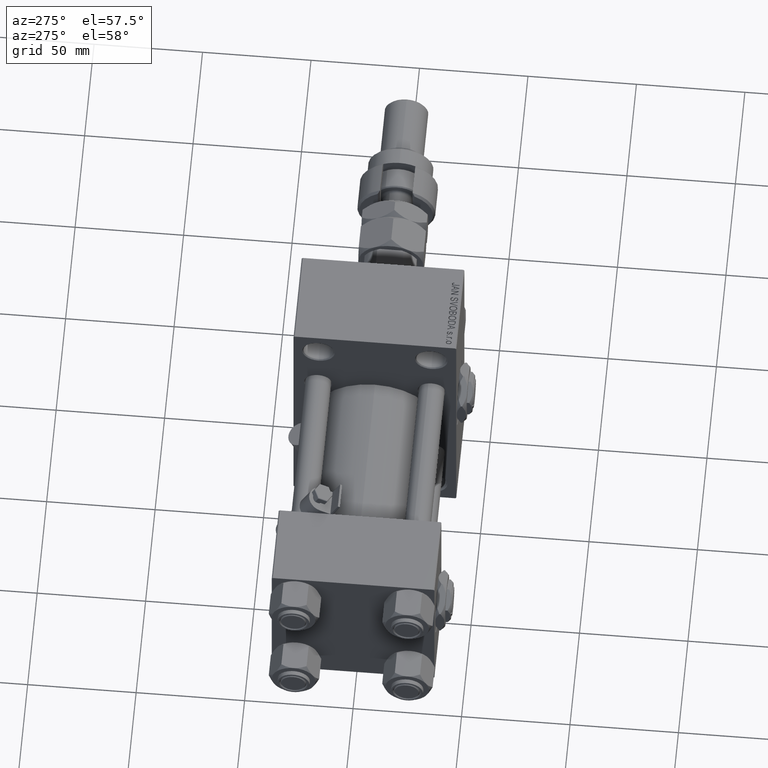
[diagram: clean part render]
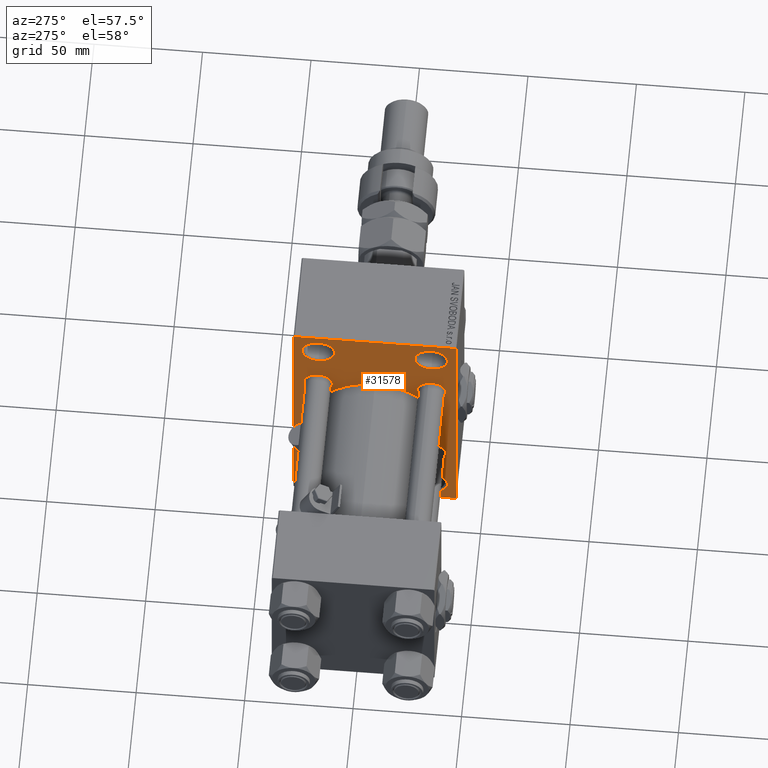
[diagram: same view with one face highlighted and labeled with its STEP entity id]
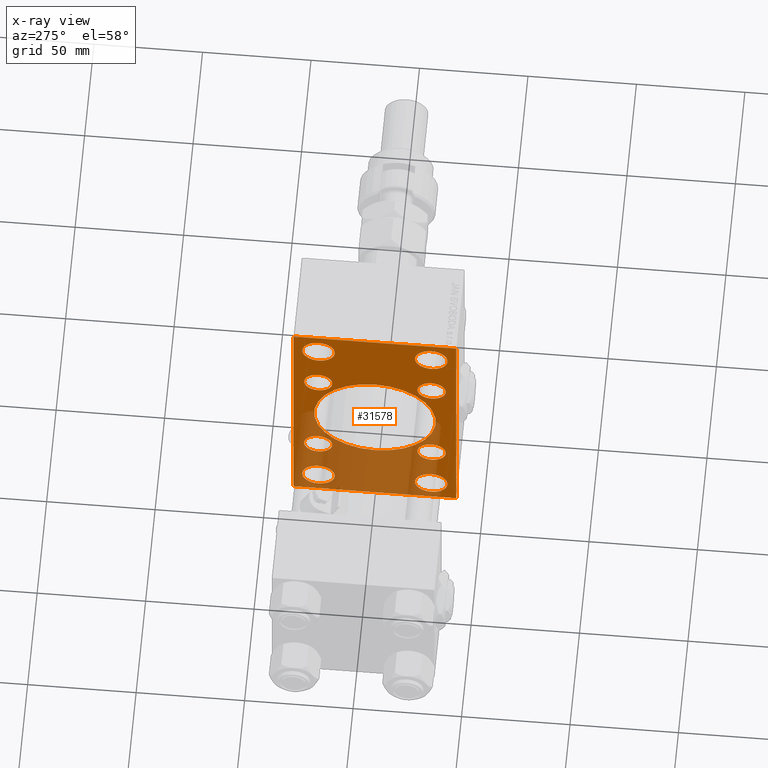
[diagram: x-ray of the same camera — body ghosted, the highlighted face saturated]
A machine part, auxiliary view. The second image highlights one B-rep face of the part: STEP entity #31578.
The next image is the same camera in x-ray: the body ghosted, the highlighted face saturated — about 40% of this face is hidden behind the body in this view.
In plain terms, the highlighted planar face has unit normal (-1, 0, 0).
Its self-contained STEP definition (entity closure, byte-faithful):
#60 = DIRECTION ( 'NONE',  ( 0.000000000000000000, 0.000000000000000000, 1.000000000000000000 ) ) ;
#288 = CARTESIAN_POINT ( 'NONE',  ( 114.9999999999999858, -25.99999999999999645, 45.00000000000002132 ) ) ;
#322 = DIRECTION ( 'NONE',  ( 0.000000000000000000, 0.000000000000000000, 1.000000000000000000 ) ) ;
#610 = ORIENTED_EDGE ( 'NONE', *, *, #37552, .T. ) ;
#745 = CARTESIAN_POINT ( 'NONE',  ( 114.9999999999999858, 26.00000000000000000, -59.99999999999997158 ) ) ;
#1836 = DIRECTION ( 'NONE',  ( -1.000000000000000000, 0.000000000000000000, -0.000000000000000000 ) ) ;
#1997 = ORIENTED_EDGE ( 'NONE', *, *, #21598, .F. ) ;
#2116 = CARTESIAN_POINT ( 'NONE',  ( 114.9999999999999858, -25.99999999999999645, 52.50000000000000000 ) ) ;
#2175 = LINE ( 'NONE', #31230, #34675 ) ;
#2268 = EDGE_CURVE ( 'NONE', #14421, #41758, #11145, .T. ) ;
#2373 = ORIENTED_EDGE ( 'NONE', *, *, #2268, .T. ) ;
#2384 = EDGE_CURVE ( 'NONE', #11996, #7151, #2536, .T. ) ;
#2536 = CIRCLE ( 'NONE', #42084, 6.500000000000008882 ) ;
#2812 = ORIENTED_EDGE ( 'NONE', *, *, #30804, .T. ) ;
#3006 = ORIENTED_EDGE ( 'NONE', *, *, #33141, .T. ) ;
#3104 = EDGE_CURVE ( 'NONE', #51750, #41331, #44697, .T. ) ;
#3382 = EDGE_LOOP ( 'NONE', ( #43505, #33776 ) ) ;
#4060 = DIRECTION ( 'NONE',  ( 1.000000000000000000, -0.000000000000000000, 0.000000000000000000 ) ) ;
#4410 = DIRECTION ( 'NONE',  ( 0.000000000000000000, -1.000000000000000000, -1.850371707708594563E-16 ) ) ;
#4458 = CIRCLE ( 'NONE', #15633, 6.500000000000008882 ) ;
#4763 = DIRECTION ( 'NONE',  ( 1.000000000000000000, -0.000000000000000000, 0.000000000000000000 ) ) ;
#4822 = CIRCLE ( 'NONE', #33221, 28.00000000000000000 ) ;
#5019 = DIRECTION ( 'NONE',  ( 0.000000000000000000, 0.000000000000000000, 1.000000000000000000 ) ) ;
#5228 = CARTESIAN_POINT ( 'NONE',  ( 114.9999999999999858, 37.00000000000000000, 63.99999999999998579 ) ) ;
#5376 = EDGE_CURVE ( 'NONE', #34450, #27543, #24894, .T. ) ;
#5380 = DIRECTION ( 'NONE',  ( 0.000000000000000000, 0.000000000000000000, 1.000000000000000000 ) ) ;
#5451 = DIRECTION ( 'NONE',  ( 0.000000000000000000, 0.000000000000000000, 1.000000000000000000 ) ) ;
#5622 = CARTESIAN_POINT ( 'NONE',  ( 114.9999999999999858, 26.00000000000000000, 52.49999999999999289 ) ) ;
#5639 = DIRECTION ( 'NONE',  ( 0.000000000000000000, 0.000000000000000000, 1.000000000000000000 ) ) ;
#6108 = CARTESIAN_POINT ( 'NONE',  ( 114.9999999999999858, -37.49999999999999289, -63.49999999999997158 ) ) ;
#6119 = CARTESIAN_POINT ( 'NONE',  ( 114.9999999999999858, 0.000000000000000000, 0.000000000000000000 ) ) ;
#6409 = CARTESIAN_POINT ( 'NONE',  ( 114.9999999999999858, -26.14999999999999147, -19.65000000000000213 ) ) ;
#6569 = VERTEX_POINT ( 'NONE', #47971 ) ;
#6861 = AXIS2_PLACEMENT_3D ( 'NONE', #32967, #45317, #45052 ) ;
#6867 = AXIS2_PLACEMENT_3D ( 'NONE', #12847, #4763, #5019 ) ;
#7151 = VERTEX_POINT ( 'NONE', #44869 ) ;
#7157 = ORIENTED_EDGE ( 'NONE', *, *, #31911, .T. ) ;
#7205 = DIRECTION ( 'NONE',  ( 1.000000000000000000, -0.000000000000000000, 0.000000000000000000 ) ) ;
#7385 = EDGE_LOOP ( 'NONE', ( #610, #7157 ) ) ;
#7424 = CARTESIAN_POINT ( 'NONE',  ( 114.9999999999999858, 26.00000000000000000, 45.00000000000001421 ) ) ;
#7483 = EDGE_CURVE ( 'NONE', #28259, #12597, #43881, .T. ) ;
#7524 = DIRECTION ( 'NONE',  ( -0.000000000000000000, 0.7071067811865525687, 0.7071067811865425767 ) ) ;
#7942 = CIRCLE ( 'NONE', #15674, 7.499999999999978684 ) ;
#8565 = CARTESIAN_POINT ( 'NONE',  ( 114.9999999999999858, -25.99999999999999645, -45.00000000000001421 ) ) ;
#8667 = VERTEX_POINT ( 'NONE', #7424 ) ;
#9068 = EDGE_CURVE ( 'NONE', #46050, #16071, #48234, .T. ) ;
#9381 = VERTEX_POINT ( 'NONE', #38407 ) ;
#9782 = DIRECTION ( 'NONE',  ( 0.000000000000000000, -1.000000000000000000, -1.850371707708594563E-16 ) ) ;
#10042 = DIRECTION ( 'NONE',  ( -0.000000000000000000, -0.7071067811865376918, -0.7071067811865573427 ) ) ;
#10097 = DIRECTION ( 'NONE',  ( 0.000000000000000000, 0.000000000000000000, 1.000000000000000000 ) ) ;
#10163 = FACE_BOUND ( 'NONE', #36659, .T. ) ;
#10381 = ORIENTED_EDGE ( 'NONE', *, *, #13264, .T. ) ;
#10399 = ORIENTED_EDGE ( 'NONE', *, *, #33667, .T. ) ;
#10515 = AXIS2_PLACEMENT_3D ( 'NONE', #6119, #1836, #27374 ) ;
#10701 = FACE_BOUND ( 'NONE', #46597, .T. ) ;
#10736 = EDGE_LOOP ( 'NONE', ( #10381, #2812, #1997, #34935, #41290, #51420, #24467, #11512 ) ) ;
#10764 = EDGE_CURVE ( 'NONE', #41331, #51750, #7942, .T. ) ;
#11145 = CIRCLE ( 'NONE', #30922, 28.00000000000000000 ) ;
#11512 = ORIENTED_EDGE ( 'NONE', *, *, #13211, .T. ) ;
#11885 = ORIENTED_EDGE ( 'NONE', *, *, #27658, .T. ) ;
#11996 = VERTEX_POINT ( 'NONE', #25783 ) ;
#12067 = CARTESIAN_POINT ( 'NONE',  ( 114.9999999999999858, 26.14999999999999858, 32.65000000000001990 ) ) ;
#12174 = DIRECTION ( 'NONE',  ( 1.000000000000000000, -0.000000000000000000, 0.000000000000000000 ) ) ;
#12241 = CARTESIAN_POINT ( 'NONE',  ( 114.9999999999999858, 37.50000000000000000, 63.49999999999998579 ) ) ;
#12453 = DIRECTION ( 'NONE',  ( 0.000000000000000000, 0.000000000000000000, 1.000000000000000000 ) ) ;
#12597 = VERTEX_POINT ( 'NONE', #15934 ) ;
#12847 = CARTESIAN_POINT ( 'NONE',  ( 114.9999999999999858, -25.99999999999999645, -52.49999999999999289 ) ) ;
#13120 = ORIENTED_EDGE ( 'NONE', *, *, #9068, .T. ) ;
#13211 = EDGE_CURVE ( 'NONE', #9381, #45383, #50146, .T. ) ;
#13229 = EDGE_LOOP ( 'NONE', ( #10399, #13120 ) ) ;
#13264 = EDGE_CURVE ( 'NONE', #45383, #48293, #17337, .T. ) ;
#13407 = VECTOR ( 'NONE', #40706, 1000.000000000000000 ) ;
#13473 = CARTESIAN_POINT ( 'NONE',  ( 114.9999999999999858, -25.99999999999999645, 52.50000000000000000 ) ) ;
#13898 = ORIENTED_EDGE ( 'NONE', *, *, #5376, .T. ) ;
#14421 = VERTEX_POINT ( 'NONE', #21323 ) ;
#14876 = CARTESIAN_POINT ( 'NONE',  ( 114.9999999999999858, -2.602085213965210642E-15, 0.000000000000000000 ) ) ;
#14953 = CARTESIAN_POINT ( 'NONE',  ( 114.9999999999999858, 26.00000000000000000, 52.49999999999999289 ) ) ;
#15031 = VERTEX_POINT ( 'NONE', #23875 ) ;
#15627 = AXIS2_PLACEMENT_3D ( 'NONE', #18708, #46945, #10097 ) ;
#15633 = AXIS2_PLACEMENT_3D ( 'NONE', #30099, #20701, #29306 ) ;
#15674 = AXIS2_PLACEMENT_3D ( 'NONE', #31785, #4060, #28021 ) ;
#15934 = CARTESIAN_POINT ( 'NONE',  ( 114.9999999999999858, -25.99999999999999645, 59.99999999999997868 ) ) ;
#16071 = VERTEX_POINT ( 'NONE', #12067 ) ;
#16423 = CARTESIAN_POINT ( 'NONE',  ( 114.9999999999999858, -50.49999999999972289, 50.50000000000042633 ) ) ;
#16615 = EDGE_CURVE ( 'NONE', #21825, #33289, #2175, .T. ) ;
#16802 = EDGE_CURVE ( 'NONE', #15031, #25445, #25110, .T. ) ;
#17048 = DIRECTION ( 'NONE',  ( 1.000000000000000000, -0.000000000000000000, 0.000000000000000000 ) ) ;
#17075 = EDGE_LOOP ( 'NONE', ( #3006, #49590 ) ) ;
#17337 = LINE ( 'NONE', #30242, #31269 ) ;
#18281 = CIRCLE ( 'NONE', #27609, 7.499999999999978684 ) ;
#18451 = VERTEX_POINT ( 'NONE', #745 ) ;
#18556 = CARTESIAN_POINT ( 'NONE',  ( 114.9999999999999858, 26.00000000000000000, 59.99999999999997158 ) ) ;
#18708 = CARTESIAN_POINT ( 'NONE',  ( 114.9999999999999858, 26.14999999999999858, -26.15000000000000213 ) ) ;
#19034 = CARTESIAN_POINT ( 'NONE',  ( 114.9999999999999858, -50.50000000000050449, -50.49999999999910472 ) ) ;
#19653 = CARTESIAN_POINT ( 'NONE',  ( 114.9999999999999858, -2.602085213965210642E-15, 0.000000000000000000 ) ) ;
#19899 = AXIS2_PLACEMENT_3D ( 'NONE', #29690, #17048, #5451 ) ;
#19900 = DIRECTION ( 'NONE',  ( 1.000000000000000000, -0.000000000000000000, 0.000000000000000000 ) ) ;
#19975 = AXIS2_PLACEMENT_3D ( 'NONE', #37707, #12174, #322 ) ;
#20418 = CARTESIAN_POINT ( 'NONE',  ( 114.9999999999999858, -36.99999999999996447, -64.00000000000001421 ) ) ;
#20701 = DIRECTION ( 'NONE',  ( 1.000000000000000000, -0.000000000000000000, 0.000000000000000000 ) ) ;
#21323 = CARTESIAN_POINT ( 'NONE',  ( 114.9999999999999858, -2.602085213965210642E-15, 28.00000000000000000 ) ) ;
#21369 = CARTESIAN_POINT ( 'NONE',  ( 114.9999999999999858, 50.50000000000053291, -50.49999999999912603 ) ) ;
#21598 = EDGE_CURVE ( 'NONE', #15031, #41524, #24352, .T. ) ;
#21825 = VERTEX_POINT ( 'NONE', #5228 ) ;
#22461 = CARTESIAN_POINT ( 'NONE',  ( 114.9999999999999858, -36.99999999999998579, 63.99999999999997158 ) ) ;
#22831 = DIRECTION ( 'NONE',  ( 1.000000000000000000, -0.000000000000000000, 0.000000000000000000 ) ) ;
#22932 = CARTESIAN_POINT ( 'NONE',  ( 114.9999999999999858, 26.14999999999999858, 19.64999999999999147 ) ) ;
#22944 = CIRCLE ( 'NONE', #40107, 6.500000000000008882 ) ;
#23616 = DIRECTION ( 'NONE',  ( 0.000000000000000000, 0.000000000000000000, 1.000000000000000000 ) ) ;
#23816 = DIRECTION ( 'NONE',  ( 0.000000000000000000, 0.000000000000000000, -1.000000000000000000 ) ) ;
#23875 = CARTESIAN_POINT ( 'NONE',  ( 114.9999999999999858, -37.49999999999999289, 63.49999999999997158 ) ) ;
#24328 = CARTESIAN_POINT ( 'NONE',  ( 114.9999999999999858, 37.50000000000000000, 63.99999999999998579 ) ) ;
#24352 = LINE ( 'NONE', #33237, #52010 ) ;
#24467 = ORIENTED_EDGE ( 'NONE', *, *, #44159, .T. ) ;
#24802 = VERTEX_POINT ( 'NONE', #48656 ) ;
#24894 = CIRCLE ( 'NONE', #6861, 6.500000000000008882 ) ;
#25110 = LINE ( 'NONE', #16423, #29551 ) ;
#25445 = VERTEX_POINT ( 'NONE', #22461 ) ;
#25602 = DIRECTION ( 'NONE',  ( 1.000000000000000000, -0.000000000000000000, 0.000000000000000000 ) ) ;
#25783 = CARTESIAN_POINT ( 'NONE',  ( 114.9999999999999858, 26.14999999999999858, -32.65000000000001279 ) ) ;
#26113 = AXIS2_PLACEMENT_3D ( 'NONE', #41744, #25602, #60 ) ;
#26316 = FACE_BOUND ( 'NONE', #36718, .T. ) ;
#26500 = EDGE_CURVE ( 'NONE', #21825, #25445, #40461, .T. ) ;
#26585 = ORIENTED_EDGE ( 'NONE', *, *, #47252, .T. ) ;
#26990 = CIRCLE ( 'NONE', #38163, 7.499999999999978684 ) ;
#27065 = DIRECTION ( 'NONE',  ( 1.000000000000000000, -0.000000000000000000, 0.000000000000000000 ) ) ;
#27117 = FACE_BOUND ( 'NONE', #7385, .T. ) ;
#27374 = DIRECTION ( 'NONE',  ( -0.000000000000000000, 0.000000000000000000, 1.000000000000000000 ) ) ;
#27543 = VERTEX_POINT ( 'NONE', #6409 ) ;
#27609 = AXIS2_PLACEMENT_3D ( 'NONE', #47212, #38622, #47479 ) ;
#27658 = EDGE_CURVE ( 'NONE', #8667, #39951, #35334, .T. ) ;
#27726 = DIRECTION ( 'NONE',  ( 0.000000000000000000, 0.000000000000000000, -1.000000000000000000 ) ) ;
#28021 = DIRECTION ( 'NONE',  ( 0.000000000000000000, 0.000000000000000000, 1.000000000000000000 ) ) ;
#28259 = VERTEX_POINT ( 'NONE', #288 ) ;
#28403 = ORIENTED_EDGE ( 'NONE', *, *, #42445, .T. ) ;
#28598 = DIRECTION ( 'NONE',  ( 1.000000000000000000, -0.000000000000000000, 0.000000000000000000 ) ) ;
#28804 = DIRECTION ( 'NONE',  ( 1.000000000000000000, 0.000000000000000000, 0.000000000000000000 ) ) ;
#29306 = DIRECTION ( 'NONE',  ( 0.000000000000000000, 0.000000000000000000, 1.000000000000000000 ) ) ;
#29551 = VECTOR ( 'NONE', #7524, 999.9999999999998863 ) ;
#29690 = CARTESIAN_POINT ( 'NONE',  ( 114.9999999999999858, 26.14999999999999858, 26.15000000000000213 ) ) ;
#30099 = CARTESIAN_POINT ( 'NONE',  ( 114.9999999999999858, -26.14999999999999147, 26.15000000000000924 ) ) ;
#30242 = CARTESIAN_POINT ( 'NONE',  ( 114.9999999999999858, 37.49999999999999289, -64.00000000000000000 ) ) ;
#30270 = CIRCLE ( 'NONE', #19975, 6.500000000000008882 ) ;
#30575 = EDGE_CURVE ( 'NONE', #42187, #6569, #4458, .T. ) ;
#30804 = EDGE_CURVE ( 'NONE', #48293, #41524, #51301, .T. ) ;
#30922 = AXIS2_PLACEMENT_3D ( 'NONE', #14876, #31291, #43631 ) ;
#30983 = CARTESIAN_POINT ( 'NONE',  ( 114.9999999999999858, -25.99999999999999645, -59.99999999999997158 ) ) ;
#31059 = CIRCLE ( 'NONE', #15627, 6.500000000000008882 ) ;
#31148 = FACE_OUTER_BOUND ( 'NONE', #10736, .T. ) ;
#31230 = CARTESIAN_POINT ( 'NONE',  ( 114.9999999999999858, 50.49999999999998579, 50.49999999999998579 ) ) ;
#31269 = VECTOR ( 'NONE', #9782, 1000.000000000000000 ) ;
#31288 = CIRCLE ( 'NONE', #26113, 7.499999999999978684 ) ;
#31291 = DIRECTION ( 'NONE',  ( 1.000000000000000000, 0.000000000000000000, 0.000000000000000000 ) ) ;
#31578 = ADVANCED_FACE ( 'NONE', ( #50788, #45431, #27117, #26316, #10163, #39212, #42960, #47013, #10701, #31148 ), #38688, .T. ) ;
#31747 = DIRECTION ( 'NONE',  ( 0.000000000000000000, 0.7071067811865474617, -0.7071067811865474617 ) ) ;
#31785 = CARTESIAN_POINT ( 'NONE',  ( 114.9999999999999858, -25.99999999999999645, -52.49999999999999289 ) ) ;
#31911 = EDGE_CURVE ( 'NONE', #18451, #24802, #18281, .T. ) ;
#32564 = ORIENTED_EDGE ( 'NONE', *, *, #37900, .T. ) ;
#32967 = CARTESIAN_POINT ( 'NONE',  ( 114.9999999999999858, -26.14999999999999147, -26.15000000000000924 ) ) ;
#32968 = VECTOR ( 'NONE', #10042, 1000.000000000000114 ) ;
#33141 = EDGE_CURVE ( 'NONE', #7151, #11996, #31059, .T. ) ;
#33221 = AXIS2_PLACEMENT_3D ( 'NONE', #19653, #28804, #27726 ) ;
#33237 = CARTESIAN_POINT ( 'NONE',  ( 114.9999999999999858, -37.49999999999999289, 63.99999999999997158 ) ) ;
#33289 = VERTEX_POINT ( 'NONE', #12241 ) ;
#33605 = AXIS2_PLACEMENT_3D ( 'NONE', #5622, #22831, #43516 ) ;
#33667 = EDGE_CURVE ( 'NONE', #16071, #46050, #30270, .T. ) ;
#33776 = ORIENTED_EDGE ( 'NONE', *, *, #7483, .T. ) ;
#34450 = VERTEX_POINT ( 'NONE', #39613 ) ;
#34675 = VECTOR ( 'NONE', #31747, 1000.000000000000114 ) ;
#34935 = ORIENTED_EDGE ( 'NONE', *, *, #16802, .T. ) ;
#35334 = CIRCLE ( 'NONE', #33605, 7.499999999999978684 ) ;
#35447 = DIRECTION ( 'NONE',  ( 0.000000000000000000, -0.7071067811865378028, 0.7071067811865573427 ) ) ;
#36659 = EDGE_LOOP ( 'NONE', ( #44860, #48700 ) ) ;
#36718 = EDGE_LOOP ( 'NONE', ( #32564, #11885 ) ) ;
#37552 = EDGE_CURVE ( 'NONE', #24802, #18451, #31288, .T. ) ;
#37707 = CARTESIAN_POINT ( 'NONE',  ( 114.9999999999999858, 26.14999999999999858, 26.15000000000000213 ) ) ;
#37900 = EDGE_CURVE ( 'NONE', #39951, #8667, #26990, .T. ) ;
#38163 = AXIS2_PLACEMENT_3D ( 'NONE', #14953, #27065, #52052 ) ;
#38206 = DIRECTION ( 'NONE',  ( 1.000000000000000000, -0.000000000000000000, 0.000000000000000000 ) ) ;
#38407 = CARTESIAN_POINT ( 'NONE',  ( 114.9999999999999858, 37.49999999999999289, -63.50000000000001421 ) ) ;
#38622 = DIRECTION ( 'NONE',  ( 1.000000000000000000, -0.000000000000000000, 0.000000000000000000 ) ) ;
#38688 = PLANE ( 'NONE',  #10515 ) ;
#39093 = EDGE_LOOP ( 'NONE', ( #51638, #39289 ) ) ;
#39212 = FACE_BOUND ( 'NONE', #13229, .T. ) ;
#39289 = ORIENTED_EDGE ( 'NONE', *, *, #3104, .T. ) ;
#39496 = VECTOR ( 'NONE', #4410, 1000.000000000000000 ) ;
#39511 = CARTESIAN_POINT ( 'NONE',  ( 114.9999999999999858, 37.00000000000002132, -64.00000000000000000 ) ) ;
#39613 = CARTESIAN_POINT ( 'NONE',  ( 114.9999999999999858, -26.14999999999999147, -32.65000000000001990 ) ) ;
#39951 = VERTEX_POINT ( 'NONE', #18556 ) ;
#40107 = AXIS2_PLACEMENT_3D ( 'NONE', #43555, #19900, #52423 ) ;
#40461 = LINE ( 'NONE', #24328, #39496 ) ;
#40706 = DIRECTION ( 'NONE',  ( 0.000000000000000000, -5.421010862427522170E-17, -1.000000000000000000 ) ) ;
#41290 = ORIENTED_EDGE ( 'NONE', *, *, #26500, .F. ) ;
#41331 = VERTEX_POINT ( 'NONE', #8565 ) ;
#41524 = VERTEX_POINT ( 'NONE', #6108 ) ;
#41744 = CARTESIAN_POINT ( 'NONE',  ( 114.9999999999999858, 26.00000000000000000, -52.49999999999999289 ) ) ;
#41758 = VERTEX_POINT ( 'NONE', #47200 ) ;
#42084 = AXIS2_PLACEMENT_3D ( 'NONE', #45247, #28598, #12453 ) ;
#42187 = VERTEX_POINT ( 'NONE', #48761 ) ;
#42218 = CARTESIAN_POINT ( 'NONE',  ( 114.9999999999999858, -26.14999999999999147, 26.15000000000000924 ) ) ;
#42306 = VECTOR ( 'NONE', #35447, 1000.000000000000000 ) ;
#42445 = EDGE_CURVE ( 'NONE', #41758, #14421, #4822, .T. ) ;
#42960 = FACE_BOUND ( 'NONE', #17075, .T. ) ;
#43505 = ORIENTED_EDGE ( 'NONE', *, *, #47992, .T. ) ;
#43516 = DIRECTION ( 'NONE',  ( 0.000000000000000000, 0.000000000000000000, 1.000000000000000000 ) ) ;
#43555 = CARTESIAN_POINT ( 'NONE',  ( 114.9999999999999858, -26.14999999999999147, -26.15000000000000924 ) ) ;
#43631 = DIRECTION ( 'NONE',  ( 0.000000000000000000, 0.000000000000000000, -1.000000000000000000 ) ) ;
#43881 = CIRCLE ( 'NONE', #50764, 7.499999999999978684 ) ;
#44159 = EDGE_CURVE ( 'NONE', #33289, #9381, #52264, .T. ) ;
#44697 = CIRCLE ( 'NONE', #6867, 7.499999999999978684 ) ;
#44860 = ORIENTED_EDGE ( 'NONE', *, *, #52029, .T. ) ;
#44869 = CARTESIAN_POINT ( 'NONE',  ( 114.9999999999999858, 26.14999999999999858, -19.64999999999999503 ) ) ;
#45052 = DIRECTION ( 'NONE',  ( 0.000000000000000000, 0.000000000000000000, 1.000000000000000000 ) ) ;
#45247 = CARTESIAN_POINT ( 'NONE',  ( 114.9999999999999858, 26.14999999999999858, -26.15000000000000213 ) ) ;
#45317 = DIRECTION ( 'NONE',  ( 1.000000000000000000, -0.000000000000000000, 0.000000000000000000 ) ) ;
#45331 = AXIS2_PLACEMENT_3D ( 'NONE', #13473, #38206, #5639 ) ;
#45383 = VERTEX_POINT ( 'NONE', #39511 ) ;
#45431 = FACE_BOUND ( 'NONE', #39093, .T. ) ;
#45498 = CIRCLE ( 'NONE', #50636, 6.500000000000008882 ) ;
#46050 = VERTEX_POINT ( 'NONE', #22932 ) ;
#46597 = EDGE_LOOP ( 'NONE', ( #2373, #28403 ) ) ;
#46945 = DIRECTION ( 'NONE',  ( 1.000000000000000000, -0.000000000000000000, 0.000000000000000000 ) ) ;
#47013 = FACE_BOUND ( 'NONE', #50949, .T. ) ;
#47200 = CARTESIAN_POINT ( 'NONE',  ( 114.9999999999999858, 8.269258236473784371E-16, -28.00000000000000000 ) ) ;
#47212 = CARTESIAN_POINT ( 'NONE',  ( 114.9999999999999858, 26.00000000000000000, -52.49999999999999289 ) ) ;
#47252 = EDGE_CURVE ( 'NONE', #27543, #34450, #22944, .T. ) ;
#47479 = DIRECTION ( 'NONE',  ( 0.000000000000000000, 0.000000000000000000, 1.000000000000000000 ) ) ;
#47899 = CIRCLE ( 'NONE', #45331, 7.499999999999978684 ) ;
#47971 = CARTESIAN_POINT ( 'NONE',  ( 114.9999999999999858, -26.14999999999999147, 32.65000000000001990 ) ) ;
#47982 = CARTESIAN_POINT ( 'NONE',  ( 114.9999999999999858, 37.50000000000000000, 63.99999999999998579 ) ) ;
#47992 = EDGE_CURVE ( 'NONE', #12597, #28259, #47899, .T. ) ;
#48234 = CIRCLE ( 'NONE', #19899, 6.500000000000008882 ) ;
#48293 = VERTEX_POINT ( 'NONE', #20418 ) ;
#48656 = CARTESIAN_POINT ( 'NONE',  ( 114.9999999999999858, 26.00000000000000000, -45.00000000000001421 ) ) ;
#48700 = ORIENTED_EDGE ( 'NONE', *, *, #30575, .T. ) ;
#48761 = CARTESIAN_POINT ( 'NONE',  ( 114.9999999999999858, -26.14999999999999147, 19.65000000000000213 ) ) ;
#49590 = ORIENTED_EDGE ( 'NONE', *, *, #2384, .T. ) ;
#49779 = DIRECTION ( 'NONE',  ( 1.000000000000000000, -0.000000000000000000, 0.000000000000000000 ) ) ;
#50146 = LINE ( 'NONE', #21369, #32968 ) ;
#50636 = AXIS2_PLACEMENT_3D ( 'NONE', #42218, #49779, #5380 ) ;
#50764 = AXIS2_PLACEMENT_3D ( 'NONE', #2116, #7205, #23616 ) ;
#50788 = FACE_BOUND ( 'NONE', #3382, .T. ) ;
#50949 = EDGE_LOOP ( 'NONE', ( #26585, #13898 ) ) ;
#51301 = LINE ( 'NONE', #19034, #42306 ) ;
#51420 = ORIENTED_EDGE ( 'NONE', *, *, #16615, .T. ) ;
#51638 = ORIENTED_EDGE ( 'NONE', *, *, #10764, .T. ) ;
#51750 = VERTEX_POINT ( 'NONE', #30983 ) ;
#52010 = VECTOR ( 'NONE', #23816, 1000.000000000000000 ) ;
#52029 = EDGE_CURVE ( 'NONE', #6569, #42187, #45498, .T. ) ;
#52052 = DIRECTION ( 'NONE',  ( 0.000000000000000000, 0.000000000000000000, 1.000000000000000000 ) ) ;
#52264 = LINE ( 'NONE', #47982, #13407 ) ;
#52423 = DIRECTION ( 'NONE',  ( 0.000000000000000000, 0.000000000000000000, 1.000000000000000000 ) ) ;